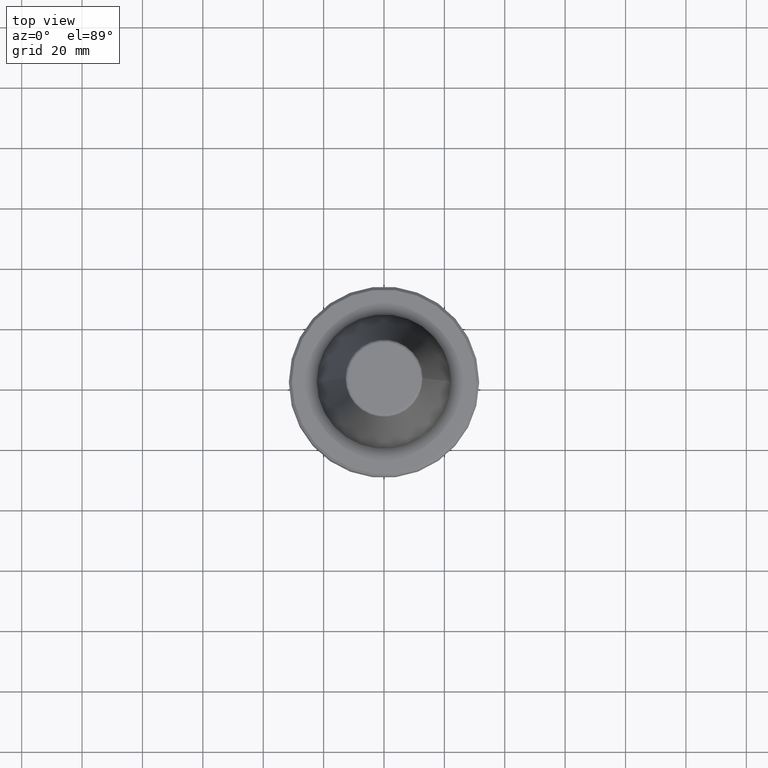
[diagram: clean part render]
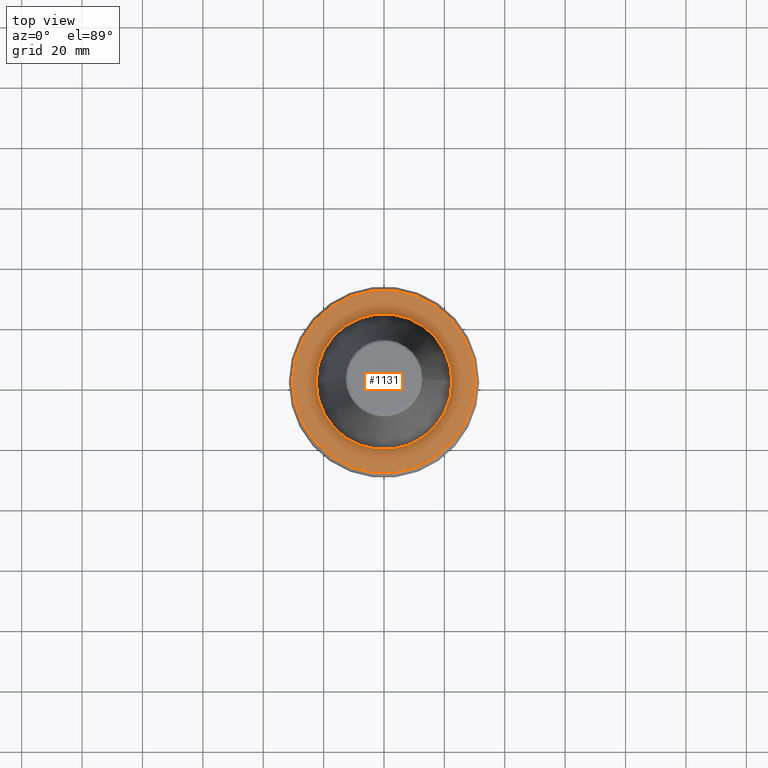
[diagram: same view with one face highlighted and labeled with its STEP entity id]
A machine part, top view. The second image highlights one B-rep face of the part: STEP entity #1131.
In plain terms, the highlighted planar face has unit normal (0, -0, 1).
Its self-contained STEP definition (entity closure, byte-faithful):
#9 = CARTESIAN_POINT ( 'NONE',  ( 0.0000000000000000000, 0.0000000000000000000, -2.000000000000001800 ) ) ;
#45 = ORIENTED_EDGE ( 'NONE', *, *, #1121, .F. ) ;
#47 = VERTEX_POINT ( 'NONE', #219 ) ;
#66 = AXIS2_PLACEMENT_3D ( 'NONE', #119, #920, #212 ) ;
#68 = ORIENTED_EDGE ( 'NONE', *, *, #1006, .T. ) ;
#75 = DIRECTION ( 'NONE',  ( -0.0000000000000000000, -0.0000000000000000000, 1.000000000000000000 ) ) ;
#119 = CARTESIAN_POINT ( 'NONE',  ( 0.0000000000000000000, 0.0000000000000000000, -2.000000000000001800 ) ) ;
#166 = DIRECTION ( 'NONE',  ( 1.000000000000000000, 0.0000000000000000000, 0.0000000000000000000 ) ) ;
#212 = DIRECTION ( 'NONE',  ( 1.000000000000000000, 0.0000000000000000000, 0.0000000000000000000 ) ) ;
#219 = CARTESIAN_POINT ( 'NONE',  ( -22.50000000000000000, 2.755455298081544800E-015, -2.000000000000001300 ) ) ;
#271 = CARTESIAN_POINT ( 'NONE',  ( 0.0000000000000000000, 0.0000000000000000000, -2.000000000000001800 ) ) ;
#317 = CIRCLE ( 'NONE', #725, 22.50000000000000000 ) ;
#337 = DIRECTION ( 'NONE',  ( -0.0000000000000000000, -0.0000000000000000000, 1.000000000000000000 ) ) ;
#342 = DIRECTION ( 'NONE',  ( 1.000000000000000000, 0.0000000000000000000, 0.0000000000000000000 ) ) ;
#383 = DIRECTION ( 'NONE',  ( 1.000000000000000000, 0.0000000000000000000, 0.0000000000000000000 ) ) ;
#455 = EDGE_CURVE ( 'NONE', #1237, #1272, #745, .T. ) ;
#464 = AXIS2_PLACEMENT_3D ( 'NONE', #9, #337, #342 ) ;
#487 = CARTESIAN_POINT ( 'NONE',  ( 30.33431457505076200, 0.0000000000000000000, -2.000000000000001800 ) ) ;
#488 = ORIENTED_EDGE ( 'NONE', *, *, #455, .T. ) ;
#501 = EDGE_CURVE ( 'NONE', #534, #47, #953, .T. ) ;
#534 = VERTEX_POINT ( 'NONE', #1182 ) ;
#563 = DIRECTION ( 'NONE',  ( 0.0000000000000000000, -0.0000000000000000000, 1.000000000000000000 ) ) ;
#596 = AXIS2_PLACEMENT_3D ( 'NONE', #1135, #1140, #383 ) ;
#656 = CARTESIAN_POINT ( 'NONE',  ( 0.0000000000000000000, 0.0000000000000000000, -2.000000000000002700 ) ) ;
#725 = AXIS2_PLACEMENT_3D ( 'NONE', #271, #75, #166 ) ;
#745 = CIRCLE ( 'NONE', #464, 30.33431457505076200 ) ;
#767 = PLANE ( 'NONE',  #1073 ) ;
#886 = EDGE_LOOP ( 'NONE', ( #68, #488 ) ) ;
#909 = EDGE_LOOP ( 'NONE', ( #1001, #45 ) ) ;
#920 = DIRECTION ( 'NONE',  ( -0.0000000000000000000, -0.0000000000000000000, 1.000000000000000000 ) ) ;
#953 = CIRCLE ( 'NONE', #596, 22.50000000000000000 ) ;
#1001 = ORIENTED_EDGE ( 'NONE', *, *, #501, .F. ) ;
#1006 = EDGE_CURVE ( 'NONE', #1272, #1237, #1179, .T. ) ;
#1019 = CARTESIAN_POINT ( 'NONE',  ( -30.33431457505076200, 3.732201245991191800E-015, -2.000000000000001800 ) ) ;
#1073 = AXIS2_PLACEMENT_3D ( 'NONE', #656, #563, #1163 ) ;
#1091 = FACE_BOUND ( 'NONE', #909, .T. ) ;
#1121 = EDGE_CURVE ( 'NONE', #47, #534, #317, .T. ) ;
#1131 = ADVANCED_FACE ( 'NONE', ( #1276, #1091 ), #767, .T. ) ;
#1135 = CARTESIAN_POINT ( 'NONE',  ( 0.0000000000000000000, 0.0000000000000000000, -2.000000000000001800 ) ) ;
#1140 = DIRECTION ( 'NONE',  ( -0.0000000000000000000, -0.0000000000000000000, 1.000000000000000000 ) ) ;
#1163 = DIRECTION ( 'NONE',  ( 1.000000000000000000, 0.0000000000000000000, 0.0000000000000000000 ) ) ;
#1179 = CIRCLE ( 'NONE', #66, 30.33431457505076200 ) ;
#1182 = CARTESIAN_POINT ( 'NONE',  ( 22.50000000000000000, 0.0000000000000000000, -2.000000000000001300 ) ) ;
#1237 = VERTEX_POINT ( 'NONE', #1019 ) ;
#1272 = VERTEX_POINT ( 'NONE', #487 ) ;
#1276 = FACE_OUTER_BOUND ( 'NONE', #886, .T. ) ;